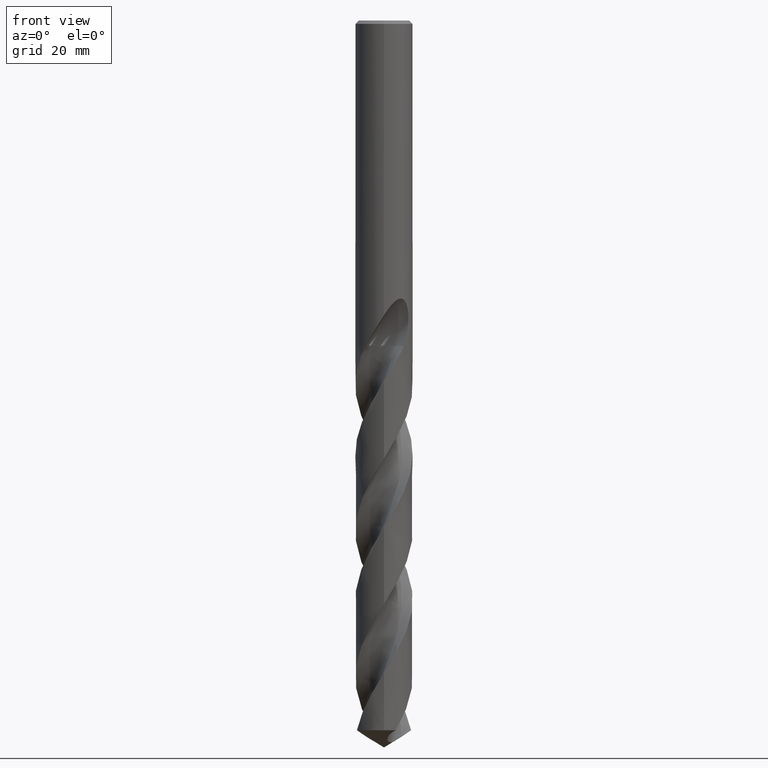
[diagram: clean part render]
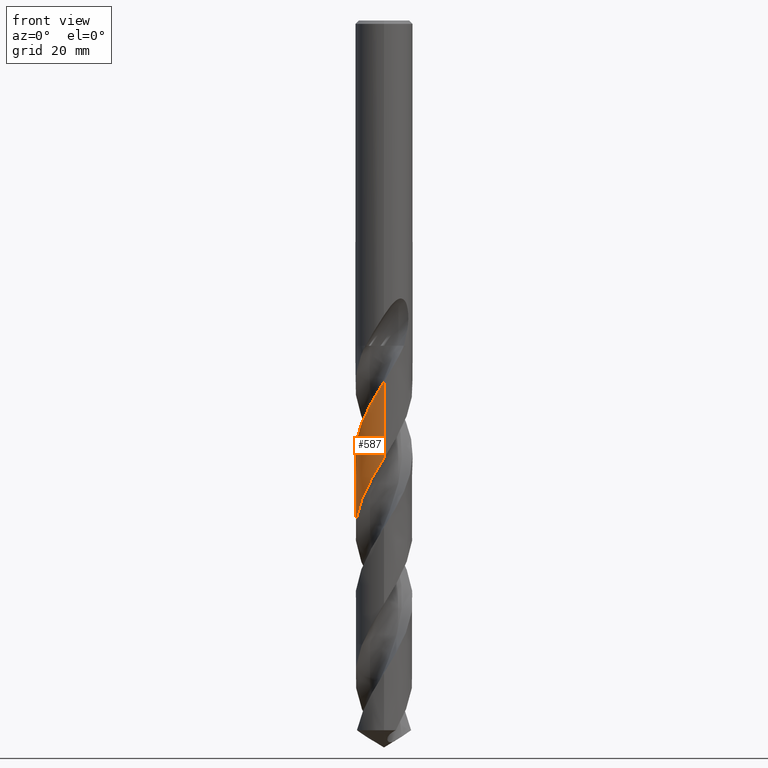
[diagram: same view with one face highlighted and labeled with its STEP entity id]
A machine part, front view. The second image highlights one B-rep face of the part: STEP entity #587.
In plain terms, the highlighted conical surface has half-angle 0 deg.
Its self-contained STEP definition (entity closure, byte-faithful):
#295=EDGE_CURVE('',#511,#621,#775,.T.);
#409=EDGE_CURVE('',#441,#461,#898,.T.);
#413=EDGE_CURVE('',#461,#511,#902,.T.);
#441=VERTEX_POINT('',#933);
#461=VERTEX_POINT('',#953);
#511=VERTEX_POINT('',#1008);
#521=EDGE_CURVE('',#621,#441,#1018,.T.);
#587=ADVANCED_FACE('',(#1090),#1091,.T.);
#621=VERTEX_POINT('',#1128);
#775=LINE('',#1458,#1459);
#898=LINE('',#3384,#3385);
#902=B_SPLINE_CURVE_WITH_KNOTS('',3,(#3392,#3393,#3394,#3395,#3396,#3397,#3398,#3399,#3400,#3401,#3402,#3403,#3404,#3405,#3406,#3407,#3408,#3409,#3410,#3411,#3412,#3413,#3414,#3415,#3416,#3417,#3418,#3419,#3420,#3421,#3422,#3423,#3424,#3425,#3426,#3427,#3428,#3429,#3430,#3431,#3432,#3433,#3434,#3435,#3436,#3437,#3438,#3439,#3440,#3441,#3442,#3443,#3444,#3445,#3446,#3447,#3448,#3449,#3450,#3451,#3452,#3453,#3454,#3455,#3456,#3457,#3458,#3459,#3460,#3461,#3462,#3463,#3464,#3465,#3466,#3467,#3468,#3469,#3470,#3471,#3472,#3473,#3474,#3475,#3476,#3477,#3478,#3479,#3480,#3481,#3482,#3483,#3484,#3485,#3486,#3487,#3488,#3489,#3490,#3491,#3492,#3493,#3494,#3495,#3496,#3497,#3498,#3499,#3500,#3501,#3502,#3503,#3504,#3505,#3506,#3507,#3508,#3509,#3510,#3511,#3512,#3513,#3514,#3515,#3516,#3517,#3518,#3519,#3520,#3521,#3522,#3523,#3524,#3525,#3526,#3527,#3528,#3529,#3530,#3531,#3532,#3533,#3534,#3535,#3536,#3537,#3538,#3539,#3540,#3541,#3542,#3543,#3544,#3545),.UNSPECIFIED.,.F.,.F.,(4,2,2,2,2,2,2,2,2,2,2,2,2,2,2,2,2,2,2,2,2,2,2,2,2,2,2,2,2,2,2,2,2,2,2,2,2,2,2,2,2,2,2,2,2,2,2,2,2,2,2,2,2,2,2,2,2,2,2,2,2,2,2,2,2,2,2,2,2,2,2,2,2,2,2,2,4),(0.0,1.50748654530633,1.88991541921366,3.14736590154603,4.02317505385611,4.890639101151,6.65005008762946,7.56356742630895,8.91027454732461,10.2587553400516,11.6060295305934,13.2356921212518,14.5908536598449,15.5086814113208,16.7820491478254,17.6037660767782,18.4047355146642,19.752970219888,21.5921097519633,23.1359168524317,23.4981230522202,26.0201597628206,26.0942580510454,27.9833165983218,29.815419869003,30.6251442429734,32.4580069678331,34.005111193509,34.3276354961778,35.6499590091773,36.5183415875236,37.3148668132709,39.0265927749595,39.9393251911185,41.2829997379073,41.9570181458602,42.625115509015,43.9683833518584,45.6141430177195,46.9353013227341,48.7636529713599,49.6833914254537,50.5991515907823,51.942874733445,52.6175546611899,53.2880055046408,54.6323272467589,55.3074742338575,55.9786010156297,57.3237740340832,57.9994288508914,58.6712561306512,60.017552403014,60.6937128313933,61.3660225758653,63.6996114430725,64.0324915364549,66.433686414719,66.7331578847922,69.1938673869093,69.4029594320629,70.7300280226471,71.5667703910027,72.2104032940249,73.5555665639491,75.7191204603716,78.1032908992503,79.1463426392215,79.8628348658946,80.5675068837216,80.9848327921977,81.2957494637103,81.5330128326611,81.7917512821478,82.1848684056281,82.6576979698151,84.0253922453913),.UNSPECIFIED.);
#933=CARTESIAN_POINT('',(-4.60620436701757E-014,5.24994720383186,-92.7057629186425));
#953=CARTESIAN_POINT('',(-2.05490071229355E-013,5.24996717770744,-106.756481925364));
#1008=CARTESIAN_POINT('',(1.63092672715157E-014,-5.24992927526557,-80.0938265980416));
#1018=B_SPLINE_CURVE_WITH_KNOTS('',3,(#4254,#4255,#4256,#4257,#4258,#4259,#4260,#4261,#4262,#4263,#4264,#4265,#4266,#4267,#4268,#4269,#4270,#4271,#4272,#4273,#4274,#4275,#4276,#4277,#4278,#4279,#4280,#4281,#4282,#4283,#4284,#4285,#4286,#4287,#4288,#4289,#4290,#4291,#4292,#4293,#4294,#4295,#4296,#4297,#4298,#4299,#4300,#4301,#4302,#4303,#4304,#4305,#4306,#4307,#4308,#4309,#4310,#4311,#4312,#4313,#4314,#4315,#4316,#4317,#4318,#4319,#4320,#4321,#4322,#4323,#4324,#4325,#4326,#4327,#4328,#4329,#4330,#4331,#4332,#4333,#4334,#4335,#4336,#4337,#4338,#4339,#4340,#4341,#4342,#4343,#4344,#4345,#4346,#4347,#4348,#4349,#4350,#4351,#4352,#4353,#4354,#4355,#4356,#4357,#4358,#4359,#4360,#4361,#4362,#4363,#4364,#4365,#4366,#4367,#4368,#4369,#4370,#4371,#4372,#4373,#4374,#4375,#4376,#4377,#4378,#4379,#4380,#4381,#4382,#4383,#4384,#4385,#4386,#4387,#4388,#4389,#4390,#4391,#4392,#4393,#4394,#4395,#4396,#4397,#4398,#4399,#4400,#4401),.UNSPECIFIED.,.F.,.F.,(4,2,2,2,2,2,2,2,2,2,2,2,2,2,2,2,2,2,2,2,2,2,2,2,2,2,2,2,2,2,2,2,2,2,2,2,2,2,2,2,2,2,2,2,2,2,2,2,2,2,2,2,2,2,2,2,2,2,2,2,2,2,2,2,2,2,2,2,2,2,2,2,2,4),(0.0,0.245147493079203,0.376889567052334,0.429010038940661,0.458770829505391,0.517518871356953,1.13684324226876,1.32619262551434,1.44567414334773,1.55045587004885,1.67996682737461,1.932374167695,2.11727051105744,2.71182734600191,3.17343692060679,3.59629394289918,3.81506963916397,4.36527247114798,4.8820826765656,5.84733672985134,13.0970902850045,13.4061839423757,15.8309908161917,15.9028916505654,18.0556838586716,18.9835969500726,20.738300763415,21.4677209346356,22.9192536542709,24.6943159270157,25.5869796835957,27.3570524056176,28.2502192990301,30.0167054160166,30.9102675384229,32.6745127898408,33.5687428660173,34.4528218713451,35.7526557245253,37.5416110272669,39.3068781583263,39.6122509773359,40.8411240207137,41.7367746755698,42.4378582038439,43.9148405444997,45.686452490242,46.5795027415076,48.3457716178562,49.2391954106456,51.0022885149418,51.8960864122938,52.7809614663465,54.1060062693658,55.8931178886489,57.6584197180022,57.9613961099816,59.2013425811078,60.9927625280722,62.7519294250753,63.416597085118,64.9406858268789,66.7057539197763,67.5994801329845,69.1707071902112,70.559933352916,71.162035469909,73.4216692918021,73.5285547590312,75.2213160585911,76.5000037869856,78.4157010204842,78.8959718556024,80.3378546333073),.UNSPECIFIED.);
#1090=FACE_OUTER_BOUND('',#4558,.T.);
#1091=CONICAL_SURFACE('',#4559,5.24995,1.42155540785034E-006);
#1128=CARTESIAN_POINT('',(2.09369078528751E-011,-5.24990930141659,-66.0431262937481));
#1458=CARTESIAN_POINT('',(6.44113971791003E-016,-5.24995,-94.6727408750527));
#1459=VECTOR('',#6880,1.0);
#3384=CARTESIAN_POINT('',(-6.41710453658954E-016,5.24995,-94.6727408750527));
#3385=VECTOR('',#6990,1.0);
#3392=CARTESIAN_POINT('',(2.14591596108831,-4.79140320657177,-129.845481750105));
#3393=CARTESIAN_POINT('',(2.38711165549686,-4.68337871819122,-129.41809774291));
#3394=CARTESIAN_POINT('',(2.61974958711492,-4.55732004162024,-128.992606265566));
#3395=CARTESIAN_POINT('',(2.89818147478174,-4.37807187758449,-128.456749306212));
#3396=CARTESIAN_POINT('',(2.95378856821589,-4.34074886943923,-128.348248240213));
#3397=CARTESIAN_POINT('',(3.18925562501905,-4.17608217153221,-127.88326942681));
#3398=CARTESIAN_POINT('',(3.36183211433741,-4.03847268026952,-127.527753864772));
#3399=CARTESIAN_POINT('',(3.63928388795904,-3.78704361771424,-126.923329047238));
#3400=CARTESIAN_POINT('',(3.74850871103309,-3.67895183954592,-126.675451706746));
#3401=CARTESIAN_POINT('',(3.95601291327231,-3.45478103019823,-126.181210352782));
#3402=CARTESIAN_POINT('',(4.05434813789913,-3.33883653503171,-125.934732193414));
#3403=CARTESIAN_POINT('',(4.33668240562404,-2.9750213303341,-125.189863413196));
#3404=CARTESIAN_POINT('',(4.50393774451582,-2.71516434243522,-124.69381104834));
#3405=CARTESIAN_POINT('',(4.72192296396359,-2.30032745259794,-123.936036558525));
#3406=CARTESIAN_POINT('',(4.78984802723543,-2.15531973807453,-123.676524395925));
#3407=CARTESIAN_POINT('',(4.94132742620814,-1.78924643044913,-123.035764198289));
#3408=CARTESIAN_POINT('',(5.01681290621335,-1.56518864197491,-122.655269723526));
#3409=CARTESIAN_POINT('',(5.1372148151178,-1.10787496356368,-121.891567807008));
#3410=CARTESIAN_POINT('',(5.18187075733279,-0.875437924459493,-121.508619839937));
#3411=CARTESIAN_POINT('',(5.23952555614861,-0.40673927262676,-120.744773346353));
#3412=CARTESIAN_POINT('',(5.25252694577051,-0.170702596479348,-120.364317660515));
#3413=CARTESIAN_POINT('',(5.24600839968086,0.351303411087204,-119.521222992398));
#3414=CARTESIAN_POINT('',(5.21912484231602,0.636126758764977,-119.058567856201));
#3415=CARTESIAN_POINT('',(5.12771224183708,1.15121980837383,-118.213151245846));
#3416=CARTESIAN_POINT('',(5.07038973779189,1.38198265047267,-117.830593966802));
#3417=CARTESIAN_POINT('',(4.94837150367918,1.76119428492292,-117.186831719748));
#3418=CARTESIAN_POINT('',(4.89213204176114,1.91183964606968,-116.926367782201));
#3419=CARTESIAN_POINT('',(4.74175884726259,2.26442960666146,-116.305996414547));
#3420=CARTESIAN_POINT('',(4.64134964352078,2.46372849875392,-115.946593724654));
#3421=CARTESIAN_POINT('',(4.45559779970407,2.7804076339583,-115.35387752277));
#3422=CARTESIAN_POINT('',(4.37772709080196,2.901456333945,-115.12162923385));
#3423=CARTESIAN_POINT('',(4.21448754195602,3.13368807803211,-114.662256316591));
#3424=CARTESIAN_POINT('',(4.12934986990706,3.24505860483974,-114.435008870804));
#3425=CARTESIAN_POINT('',(3.88903002160532,3.53460409456829,-113.826398545209));
#3426=CARTESIAN_POINT('',(3.72612645276699,3.70595022499676,-113.445899982755));
#3427=CARTESIAN_POINT('',(3.31479933952199,4.08389955770051,-112.543726941486));
#3428=CARTESIAN_POINT('',(3.05796288623853,4.2796017421395,-112.022041543937));
#3429=CARTESIAN_POINT('',(2.55534822032923,4.594085470839,-111.064521787431));
#3430=CARTESIAN_POINT('',(2.31543984538363,4.71952106731599,-110.629328647391));
#3431=CARTESIAN_POINT('',(2.00896379365017,4.85080240418272,-110.089485885558));
#3432=CARTESIAN_POINT('',(1.95032879340127,4.87467261950057,-109.986837907439));
#3433=CARTESIAN_POINT('',(1.47981588783992,5.05636718957596,-109.170028888773));
#3434=CARTESIAN_POINT('',(1.05028295519887,5.16267345814387,-108.463890719085));
#3435=CARTESIAN_POINT('',(0.599857788837654,5.21560236874202,-107.728696903629));
#3436=CARTESIAN_POINT('',(0.586981934789312,5.21706722945025,-107.707690264848));
#3437=CARTESIAN_POINT('',(0.244926260567437,5.25469502111798,-107.150013142144));
#3438=CARTESIAN_POINT('',(-0.0872160593944918,5.2597204795028,-106.616908737675));
#3439=CARTESIAN_POINT('',(-0.738801262446197,5.20767542837262,-105.560980710091));
#3440=CARTESIAN_POINT('',(-1.05653764635428,5.1526206318765,-105.040075139007));
#3441=CARTESIAN_POINT('',(-1.50473301665353,5.03171358959564,-104.290513885479));
#3442=CARTESIAN_POINT('',(-1.64052589385382,4.98909052606969,-104.061035769854));
#3443=CARTESIAN_POINT('',(-2.07744006163562,4.83218603738524,-103.311197726714));
#3444=CARTESIAN_POINT('',(-2.36974489294566,4.69575364833081,-102.789996698279));
#3445=CARTESIAN_POINT('',(-2.8825207364552,4.39625286196081,-101.83098282217));
#3446=CARTESIAN_POINT('',(-3.10597634659642,4.24129000669532,-101.393797292457));
#3447=CARTESIAN_POINT('',(-3.36005952079722,4.03426127948213,-100.862896866698));
#3448=CARTESIAN_POINT('',(-3.40328722054568,3.9978624600118,-100.771267090314));
#3449=CARTESIAN_POINT('',(-3.62100791560212,3.80843620304395,-100.303919576216));
#3450=CARTESIAN_POINT('',(-3.78593331662794,3.6445609110546,-99.9294713977666));
#3451=CARTESIAN_POINT('',(-4.04054282363726,3.35549891866196,-99.3076168794444));
#3452=CARTESIAN_POINT('',(-4.13633862144243,3.23666206654945,-99.0613941018049));
#3453=CARTESIAN_POINT('',(-4.30969135388437,3.00135722568956,-98.5884961075261));
#3454=CARTESIAN_POINT('',(-4.38810006294604,2.88551357577772,-98.3617750548075));
#3455=CARTESIAN_POINT('',(-4.62030578404535,2.51101986287848,-97.6491489275797));
#3456=CARTESIAN_POINT('',(-4.75651793918717,2.24231699349216,-97.1654226135684));
#3457=CARTESIAN_POINT('',(-4.92895491704004,1.8146950105313,-96.4199126896965));
#3458=CARTESIAN_POINT('',(-4.98203138644177,1.66344007159018,-96.160090119451));
#3459=CARTESIAN_POINT('',(-5.09595690068099,1.28407492966457,-95.5192178247812));
#3460=CARTESIAN_POINT('',(-5.1485397553219,1.05371055633017,-95.1388845061564));
#3461=CARTESIAN_POINT('',(-5.20396378751023,0.703399892382055,-94.5661599866238));
#3462=CARTESIAN_POINT('',(-5.21849665682109,0.585879240707576,-94.3749469797624));
#3463=CARTESIAN_POINT('',(-5.23949511364891,0.351286731301074,-93.9937479099949));
#3464=CARTESIAN_POINT('',(-5.24603460945426,0.234197687594229,-93.8036351291286));
#3465=CARTESIAN_POINT('',(-5.25389896086408,-0.118938215995534,-93.2321794336889));
#3466=CARTESIAN_POINT('',(-5.24325395625375,-0.355007532160789,-92.8518396896114));
#3467=CARTESIAN_POINT('',(-5.18421155889043,-0.877290437424838,-92.0031300094704));
#3468=CARTESIAN_POINT('',(-5.12800824093174,-1.16150149908918,-91.5347616157787));
#3469=CARTESIAN_POINT('',(-4.98505297500799,-1.6628450695485,-90.6922039583505));
#3470=CARTESIAN_POINT('',(-4.90665741549746,-1.88162806461531,-90.318214285471));
#3471=CARTESIAN_POINT('',(-4.68584741191501,-2.3891339743818,-89.4239002820516));
#3472=CARTESIAN_POINT('',(-4.53088492157302,-2.67138960571729,-88.9037174885373));
#3473=CARTESIAN_POINT('',(-4.2604872323726,-3.07185271675963,-88.1235112300069));
#3474=CARTESIAN_POINT('',(-4.16387159245129,-3.2015884291444,-87.862767337613));
#3475=CARTESIAN_POINT('',(-3.95949024149807,-3.45111559750866,-87.341542742382));
#3476=CARTESIAN_POINT('',(-3.8519366786392,-3.57074751014045,-87.0809892806851));
#3477=CARTESIAN_POINT('',(-3.57379117030487,-3.85297301919349,-86.4396293312936));
#3478=CARTESIAN_POINT('',(-3.39712904154425,-4.00962427764943,-86.0595184377861));
#3479=CARTESIAN_POINT('',(-3.11656091748733,-4.22645650660801,-85.4870309212236));
#3480=CARTESIAN_POINT('',(-3.02041329409418,-4.29568955745054,-85.2957851857993));
#3481=CARTESIAN_POINT('',(-2.82435807259598,-4.42703805403827,-84.9140612113042));
#3482=CARTESIAN_POINT('',(-2.72456103250046,-4.48914212657158,-84.7234964286969));
#3483=CARTESIAN_POINT('',(-2.4187149754318,-4.66552582896239,-84.1519417561047));
#3484=CARTESIAN_POINT('',(-2.20677781365445,-4.76944905180852,-83.7718924847259));
#3485=CARTESIAN_POINT('',(-1.87865135353566,-4.90372530977238,-83.1994694878232));
#3486=CARTESIAN_POINT('',(-1.76753495144146,-4.94485929313936,-83.0082159682247));
#3487=CARTESIAN_POINT('',(-1.54353066878809,-5.01927825801995,-82.6264214030249));
#3488=CARTESIAN_POINT('',(-1.43075307310876,-5.05257846812203,-82.4357918027737));
#3489=CARTESIAN_POINT('',(-1.08896867847302,-5.1411493210836,-81.8642076945192));
#3490=CARTESIAN_POINT('',(-0.857024111276772,-5.18488043614357,-81.4841865262218));
#3491=CARTESIAN_POINT('',(-0.504984201591965,-5.22693143476293,-80.9117972211551));
#3492=CARTESIAN_POINT('',(-0.386912770024492,-5.23699163804845,-80.7205411074219));
#3493=CARTESIAN_POINT('',(-0.1511130908229,-5.24907455571916,-80.3386898392957));
#3494=CARTESIAN_POINT('',(-0.0334882534423847,-5.251138542486,-80.1480059214753));
#3495=CARTESIAN_POINT('',(0.319594653760469,-5.24548410586864,-79.5763553457439));
#3496=CARTESIAN_POINT('',(0.554822830997582,-5.22586038883183,-79.1963160202173));
#3497=CARTESIAN_POINT('',(0.9053490482126,-5.17263267194928,-78.6239055029646));
#3498=CARTESIAN_POINT('',(1.02182728828842,-5.15088491110091,-78.4326523744845));
#3499=CARTESIAN_POINT('',(1.25230541535622,-5.099736528626,-78.0508098416327));
#3500=CARTESIAN_POINT('',(1.36621480357808,-5.07040347723332,-77.8601275103175));
#3501=CARTESIAN_POINT('',(1.87035335029269,-4.92238496326313,-77.0093919582387));
#3502=CARTESIAN_POINT('',(2.24686963382172,-4.7623000457558,-76.3553631563454));
#3503=CARTESIAN_POINT('',(2.6515373967362,-4.53149226172095,-75.6008285193172));
#3504=CARTESIAN_POINT('',(2.70154408509041,-4.50185914799211,-75.5065846747599));
#3505=CARTESIAN_POINT('',(3.10867678130097,-4.25135953316121,-74.7325325456015));
#3506=CARTESIAN_POINT('',(3.43841879209491,-3.98936066821692,-74.0597456915745));
#3507=CARTESIAN_POINT('',(3.77020253447436,-3.65376069499628,-73.2952910759103));
#3508=CARTESIAN_POINT('',(3.80641737782547,-3.61601784145899,-73.2104839708896));
#3509=CARTESIAN_POINT('',(4.13541531614148,-3.26270185561014,-72.4286529848231));
#3510=CARTESIAN_POINT('',(4.38873186300014,-2.913010917857,-71.7391071896057));
#3511=CARTESIAN_POINT('',(4.61417641599677,-2.50446260185295,-70.9829688465441));
#3512=CARTESIAN_POINT('',(4.63149572078776,-2.47228805291812,-70.9237307401832));
#3513=CARTESIAN_POINT('',(4.75649685680203,-2.23413115037283,-70.4880635345621));
#3514=CARTESIAN_POINT('',(4.85082783551386,-2.02121843477684,-70.113009489292));
#3515=CARTESIAN_POINT('',(4.98121151856133,-1.6645410525644,-69.4999600857702));
#3516=CARTESIAN_POINT('',(5.02578214878044,-1.5246665271265,-69.2631481866068));
#3517=CARTESIAN_POINT('',(5.09412933258725,-1.27442387721975,-68.8434811076308));
#3518=CARTESIAN_POINT('',(5.12030111733096,-1.16481029831352,-68.6607343263427));
#3519=CARTESIAN_POINT('',(5.19018843572285,-0.823957902393731,-68.0972293202115));
#3520=CARTESIAN_POINT('',(5.22195943661933,-0.590228056503568,-67.7173049384629));
#3521=CARTESIAN_POINT('',(5.2635515939982,0.0237295957854351,-66.7241765223596));
#3522=CARTESIAN_POINT('',(5.24802889340719,0.403705868858457,-66.113201461489));
#3523=CARTESIAN_POINT('',(5.13013673535807,1.19044718941563,-64.8257199619041));
#3524=CARTESIAN_POINT('',(5.01947616032413,1.59421356169662,-64.1444911365013));
#3525=CARTESIAN_POINT('',(4.79238779986092,2.15128921679505,-63.1833525615464));
#3526=CARTESIAN_POINT('',(4.71766691630529,2.31014352661588,-62.9101995559146));
#3527=CARTESIAN_POINT('',(4.57664598178693,2.57502164707593,-62.4315436752408));
#3528=CARTESIAN_POINT('',(4.51630964253586,2.67927171763646,-62.2364167717242));
#3529=CARTESIAN_POINT('',(4.39177777232901,2.87877957572764,-61.845444308698));
#3530=CARTESIAN_POINT('',(4.3260202611222,2.97659869139626,-61.6450763383095));
#3531=CARTESIAN_POINT('',(4.21943277788241,3.12449387377956,-61.3190132751952));
#3532=CARTESIAN_POINT('',(4.19488050848576,3.15698926150178,-61.2421212033826));
#3533=CARTESIAN_POINT('',(4.14591581710635,3.22087516831876,-61.0963990885022));
#3534=CARTESIAN_POINT('',(4.12434510731926,3.24846577436575,-61.0346345380748));
#3535=CARTESIAN_POINT('',(4.08498516809104,3.29774356121037,-60.9263608926099));
#3536=CARTESIAN_POINT('',(4.06753233405535,3.31925334677687,-60.8797641120368));
#3537=CARTESIAN_POINT('',(4.03010500737935,3.36461944486443,-60.7828392139659));
#3538=CARTESIAN_POINT('',(4.01006598119181,3.38848680970588,-60.7326088253259));
#3539=CARTESIAN_POINT('',(3.95818519613676,3.44913805313146,-60.6067971332127));
#3540=CARTESIAN_POINT('',(3.92729838760192,3.48428061917483,-60.5356399830315));
#3541=CARTESIAN_POINT('',(3.85464819459123,3.56463872746989,-60.3765016493796));
#3542=CARTESIAN_POINT('',(3.81314478665943,3.60905675205826,-60.2908641613685));
#3543=CARTESIAN_POINT('',(3.64391085281246,3.78365147319639,-59.9617974870712));
#3544=CARTESIAN_POINT('',(3.50320005887938,3.91548167106477,-59.7295031988002));
#3545=CARTESIAN_POINT('',(3.34534377703037,4.0460011243343,-59.505));
#4254=CARTESIAN_POINT('',(3.64908533301686,-3.77433786471103,-59.505));
#4255=CARTESIAN_POINT('',(3.61970066609569,-3.80274753257891,-59.5757595164052));
#4256=CARTESIAN_POINT('',(3.58989777984126,-3.83089883720235,-59.6465355898578));
#4257=CARTESIAN_POINT('',(3.54330824543369,-3.87387549989193,-59.7552437854508));
#4258=CARTESIAN_POINT('',(3.52689310455275,-3.88882709398588,-59.7931902285004));
#4259=CARTESIAN_POINT('',(3.50376360746395,-3.90962575068872,-59.8461229704857));
#4260=CARTESIAN_POINT('',(3.49718456379707,-3.91551193098533,-59.8611199778194));
#4261=CARTESIAN_POINT('',(3.48681066064202,-3.92474618926558,-59.8846720128631));
#4262=CARTESIAN_POINT('',(3.48303257700961,-3.9280994777187,-59.8932297312672));
#4263=CARTESIAN_POINT('',(3.47177296793953,-3.93806403174063,-59.9186745112178));
#4264=CARTESIAN_POINT('',(3.46427015290268,-3.9446658977499,-59.9355520330065));
#4265=CARTESIAN_POINT('',(3.37730276135589,-4.02074919249541,-60.1302730468318));
#4266=CARTESIAN_POINT('',(3.29596074856169,-4.08778224943975,-60.3035454888723));
#4267=CARTESIAN_POINT('',(3.18344035813022,-4.17471932124399,-60.5322815427228));
#4268=CARTESIAN_POINT('',(3.15682047285328,-4.19488698692267,-60.5856645678309));
#4269=CARTESIAN_POINT('',(3.11287813518448,-4.22751766650705,-60.6727248190507));
#4270=CARTESIAN_POINT('',(3.09570755711161,-4.24010848059036,-60.7064940444586));
#4271=CARTESIAN_POINT('',(3.06319791227641,-4.26364153384535,-60.7700057921879));
#4272=CARTESIAN_POINT('',(3.0479333290443,-4.27456724179083,-60.7996540977326));
#4273=CARTESIAN_POINT('',(3.01362724857477,-4.29884413610177,-60.865940115385));
#4274=CARTESIAN_POINT('',(2.99455952106768,-4.31214862960217,-60.9025470829063));
#4275=CARTESIAN_POINT('',(2.9380182907892,-4.35104334468119,-61.0105127859811));
#4276=CARTESIAN_POINT('',(2.90034281585106,-4.37624707847561,-61.0817042177918));
#4277=CARTESIAN_POINT('',(2.83453088327332,-4.41905102405828,-61.2052985020666));
#4278=CARTESIAN_POINT('',(2.80624502432045,-4.4370726676884,-61.2581870831461));
#4279=CARTESIAN_POINT('',(2.68499852145174,-4.51266449346126,-61.4848464871134));
#4280=CARTESIAN_POINT('',(2.59124455781251,-4.56711066816769,-61.6593289843428));
#4281=CARTESIAN_POINT('',(2.42318774140381,-4.6579630554069,-61.9683997754632));
#4282=CARTESIAN_POINT('',(2.34890863709964,-4.69585414818315,-62.1037954884888));
#4283=CARTESIAN_POINT('',(2.20515154222251,-4.76493587978299,-62.3630075804287));
#4284=CARTESIAN_POINT('',(2.13568190636986,-4.79647587293711,-62.4870459065991));
#4285=CARTESIAN_POINT('',(2.02922787233695,-4.84203370871097,-62.6750678308645));
#4286=CARTESIAN_POINT('',(1.9927317151877,-4.85716808878693,-62.7391711619492));
#4287=CARTESIAN_POINT('',(1.86376869911075,-4.90894639723486,-62.9643934162377));
#4288=CARTESIAN_POINT('',(1.77046052245211,-4.94336866347027,-63.1249706073824));
#4289=CARTESIAN_POINT('',(1.58741441208681,-5.0050351401481,-63.4368278958421));
#4290=CARTESIAN_POINT('',(1.4979570810038,-5.0325335925621,-63.5877582078655));
#4291=CARTESIAN_POINT('',(1.23940243851381,-5.10450318376894,-64.0208648038418));
#4292=CARTESIAN_POINT('',(1.06890301967328,-5.14290082939446,-64.3029233641127));
#4293=CARTESIAN_POINT('',(-0.394637945844607,-5.39667920253419,-66.7047552860633));
#4294=CARTESIAN_POINT('',(-1.72476773478955,-5.12901366282802,-68.754525531863));
#4295=CARTESIAN_POINT('',(-2.87658335974605,-4.39204005604108,-70.9639945671842));
#4296=CARTESIAN_POINT('',(-2.92319185478039,-4.36115780111627,-71.0543210730171));
#4297=CARTESIAN_POINT('',(-3.33098815214505,-4.08148305450207,-71.8535622007936));
#4298=CARTESIAN_POINT('',(-3.66022583812792,-3.78903757005582,-72.5602541895539));
#4299=CARTESIAN_POINT('',(-3.95781420229887,-3.4492798905859,-73.2901689269797));
#4300=CARTESIAN_POINT('',(-3.96634727816764,-3.43946428895241,-73.311188251627));
#4301=CARTESIAN_POINT('',(-4.22924744883208,-3.13477067410862,-73.9616274812905));
#4302=CARTESIAN_POINT('',(-4.45009176887506,-2.81248355490137,-74.5898737244348));
#4303=CARTESIAN_POINT('',(-4.71219536471309,-2.32057925434501,-75.490634026391));
#4304=CARTESIAN_POINT('',(-4.78397234760307,-2.16874722986856,-75.7617035066297));
#4305=CARTESIAN_POINT('',(-4.97007428346084,-1.72069077846973,-76.5462120203725));
#4306=CARTESIAN_POINT('',(-5.06500793989197,-1.41711218920304,-77.0584483790621));
#4307=CARTESIAN_POINT('',(-5.15976336337317,-0.977744047804286,-77.784801401143));
#4308=CARTESIAN_POINT('',(-5.1827062208727,-0.847755148463114,-77.9979396133019));
#4309=CARTESIAN_POINT('',(-5.23658676791079,-0.456973379210611,-78.6357642209865));
#4310=CARTESIAN_POINT('',(-5.25289085218026,-0.194529977201798,-79.0598957002219));
#4311=CARTESIAN_POINT('',(-5.24532512649125,0.38916622958392,-80.0034692765793));
#4312=CARTESIAN_POINT('',(-5.21170828137282,0.709174636842171,-80.5212996626878));
#4313=CARTESIAN_POINT('',(-5.1175946713722,1.18239845691739,-81.3015317572829));
#4314=CARTESIAN_POINT('',(-5.07880959483769,1.33923733692335,-81.56247123728));
#4315=CARTESIAN_POINT('',(-4.94170820870425,1.80107535392853,-82.3411405380164));
#4316=CARTESIAN_POINT('',(-4.82268196905092,2.09905449432653,-82.8575672625409));
#4317=CARTESIAN_POINT('',(-4.6039227108178,2.52820133994721,-83.6364885001007));
#4318=CARTESIAN_POINT('',(-4.52394115996181,2.66868601937933,-83.8975714288788));
#4319=CARTESIAN_POINT('',(-4.26681027395599,3.07543583903848,-84.675339243977));
#4320=CARTESIAN_POINT('',(-4.07174388380701,3.32938606289292,-85.1907721647121));
#4321=CARTESIAN_POINT('',(-3.74513957434471,3.6826476221191,-85.9687678442249));
#4322=CARTESIAN_POINT('',(-3.62998593404298,3.79620719291121,-86.2299655506487));
#4323=CARTESIAN_POINT('',(-3.27236614762417,4.11769017049428,-87.007197553394));
#4324=CARTESIAN_POINT('',(-3.01604464545427,4.30896395935349,-87.5220239740196));
#4325=CARTESIAN_POINT('',(-2.60610771641991,4.56028978350671,-88.2995513407386));
#4326=CARTESIAN_POINT('',(-2.46435938469445,4.63842605344779,-88.5609350685145));
#4327=CARTESIAN_POINT('',(-2.17569251305194,4.78056924278581,-89.0809660208377));
#4328=CARTESIAN_POINT('',(-2.02904668866794,4.84463033758245,-89.3392236602222));
#4329=CARTESIAN_POINT('',(-1.660164266581,4.98608580392714,-89.977928849915));
#4330=CARTESIAN_POINT('',(-1.4351946659036,5.05543494213925,-90.3578827700928));
#4331=CARTESIAN_POINT('',(-0.891360570250054,5.18383455566174,-91.2612496200763));
#4332=CARTESIAN_POINT('',(-0.570217606221704,5.22890805111489,-91.7829230294345));
#4333=CARTESIAN_POINT('',(0.0719201004691721,5.25915547173351,-92.8225028700012));
#4334=CARTESIAN_POINT('',(0.391639588343294,5.24505681487173,-93.3377246578306));
#4335=CARTESIAN_POINT('',(0.762925056824371,5.19451280514353,-93.9432470846751));
#4336=CARTESIAN_POINT('',(0.817552506232225,5.18619571893099,-94.0325303903652));
#4337=CARTESIAN_POINT('',(1.09128770128664,5.14008739668291,-94.4812556758811));
#4338=CARTESIAN_POINT('',(1.30796081252809,5.0892674070561,-94.8405298118404));
#4339=CARTESIAN_POINT('',(1.67583999336383,4.9779315872043,-95.4619384114119));
#4340=CARTESIAN_POINT('',(1.8286985817817,4.92383239171682,-95.7237296201944));
#4341=CARTESIAN_POINT('',(2.0963543563047,4.81491372879177,-96.1907021162617));
#4342=CARTESIAN_POINT('',(2.212077032111,4.76285653848194,-96.3956163971144));
#4343=CARTESIAN_POINT('',(2.56533383370573,4.58829688158376,-97.0327243861406));
#4344=CARTESIAN_POINT('',(2.79553187289867,4.45179190676613,-97.4643498115023));
#4345=CARTESIAN_POINT('',(3.27683081141509,4.11426605359299,-98.4145369009092));
#4346=CARTESIAN_POINT('',(3.52185742657813,3.90656758204381,-98.9315075876514));
#4347=CARTESIAN_POINT('',(3.85955230602324,3.56258414276098,-99.7109940983979));
#4348=CARTESIAN_POINT('',(3.96736776510448,3.44211641725245,-99.9720923760999));
#4349=CARTESIAN_POINT('',(4.27141259038306,3.06908232596614,-100.749909761178));
#4350=CARTESIAN_POINT('',(4.45027196626585,2.80343498731869,-101.265371826566));
#4351=CARTESIAN_POINT('',(4.68152126560272,2.38150490201766,-102.043407717876));
#4352=CARTESIAN_POINT('',(4.75262823757438,2.23623667066698,-102.304613065691));
#4353=CARTESIAN_POINT('',(4.94381941380006,1.79514658055339,-103.081613587554));
#4354=CARTESIAN_POINT('',(5.04373772848787,1.49149113269601,-103.596199661439));
#4355=CARTESIAN_POINT('',(5.15183413502257,1.02316597279607,-104.37342268091));
#4356=CARTESIAN_POINT('',(5.18090749723659,0.863993241023549,-104.634736218278));
#4357=CARTESIAN_POINT('',(5.22405362064661,0.54501245906236,-105.154979560239));
#4358=CARTESIAN_POINT('',(5.23824448867163,0.385440585390933,-105.413523590096));
#4359=CARTESIAN_POINT('',(5.25541893439155,-0.0140491056605581,-106.059955556352));
#4360=CARTESIAN_POINT('',(5.24929663035818,-0.254015353685866,-106.447329559358));
#4361=CARTESIAN_POINT('',(5.19644522016721,-0.814674581844251,-107.357688632017));
#4362=CARTESIAN_POINT('',(5.13641885711426,-1.13309028639617,-107.878928826343));
#4363=CARTESIAN_POINT('',(4.95967099418408,-1.75095284556399,-108.918178664955));
#4364=CARTESIAN_POINT('',(4.84398487692763,-2.04941323399439,-109.433501927179));
#4365=CARTESIAN_POINT('',(4.67744721394484,-2.38468007971056,-110.038451274808));
#4366=CARTESIAN_POINT('',(4.65228726685325,-2.4333998430696,-110.127053699086));
#4367=CARTESIAN_POINT('',(4.52030429301446,-2.67944169762517,-110.578406723878));
#4368=CARTESIAN_POINT('',(4.40167521501985,-2.87015915022558,-110.94098179603));
#4369=CARTESIAN_POINT('',(4.08272777738431,-3.316419982623,-111.827803333685));
#4370=CARTESIAN_POINT('',(3.87023736181957,-3.56209917344172,-112.350264255846));
#4371=CARTESIAN_POINT('',(3.40690810310686,-4.00706025074925,-113.389041527393));
#4372=CARTESIAN_POINT('',(3.15771660074242,-4.2062438545646,-113.902706256069));
#4373=CARTESIAN_POINT('',(2.79153745088082,-4.44792835814767,-114.611709281623));
#4374=CARTESIAN_POINT('',(2.68889763619323,-4.51071714208677,-114.806042722373));
#4375=CARTESIAN_POINT('',(2.34415976168789,-4.70566156970972,-115.446409140424));
#4376=CARTESIAN_POINT('',(2.09374570035463,-4.82230426021377,-115.891834707987));
#4377=CARTESIAN_POINT('',(1.53597477886806,-5.03042263650286,-116.854064329237));
#4378=CARTESIAN_POINT('',(1.22712964680624,-5.11453482048641,-117.369310069274));
#4379=CARTESIAN_POINT('',(0.753367976350771,-5.19816437896999,-118.147229025784));
#4380=CARTESIAN_POINT('',(0.592875183889507,-5.2189077731064,-118.408567302312));
#4381=CARTESIAN_POINT('',(0.14820973724266,-5.25559320248844,-119.129670163634));
#4382=CARTESIAN_POINT('',(-0.136608558989312,-5.25590201162618,-119.588477036593));
#4383=CARTESIAN_POINT('',(-0.67054207627365,-5.21305236416322,-120.454677789188));
#4384=CARTESIAN_POINT('',(-0.919389655330092,-5.17497169309002,-120.860590791579));
#4385=CARTESIAN_POINT('',(-1.27088581835282,-5.09500771814748,-121.443123972364));
#4386=CARTESIAN_POINT('',(-1.37636608367893,-5.06753060569841,-121.61916806071));
#4387=CARTESIAN_POINT('',(-1.87322449521699,-4.92144697658451,-122.45646859345));
#4388=CARTESIAN_POINT('',(-2.25081776968275,-4.76062650899464,-123.115682648559));
#4389=CARTESIAN_POINT('',(-2.62274243536511,-4.54796728609912,-123.808023802516));
#4390=CARTESIAN_POINT('',(-2.63948626936239,-4.53827026451992,-123.839291291048));
#4391=CARTESIAN_POINT('',(-2.92050611649228,-4.37343915984629,-124.365836163309));
#4392=CARTESIAN_POINT('',(-3.17076386531223,-4.19554391162081,-124.860693801191));
#4393=CARTESIAN_POINT('',(-3.5802889654952,-3.8467588072819,-125.730161776486));
#4394=CARTESIAN_POINT('',(-3.74637229642134,-3.68519978799935,-126.103599299539));
#4395=CARTESIAN_POINT('',(-4.13326124039041,-3.25558344608027,-127.038409009007));
#4396=CARTESIAN_POINT('',(-4.33923349199676,-2.97553596364471,-127.597950150918));
#4397=CARTESIAN_POINT('',(-4.56044059645499,-2.60238722426953,-128.299049126873));
#4398=CARTESIAN_POINT('',(-4.60291322332225,-2.5265050930883,-128.439535617546));
#4399=CARTESIAN_POINT('',(-4.76527220327456,-2.21873868682029,-129.002023504017));
#4400=CARTESIAN_POINT('',(-4.86969798547308,-1.97906846790117,-129.42357491473));
#4401=CARTESIAN_POINT('',(-4.95586829521978,-1.73259038449234,-129.845481750105));
#4558=EDGE_LOOP('',(#7173,#7174,#7175,#7176));
#4559=AXIS2_PLACEMENT_3D('',#7177,#7178,#7179);
#6880=DIRECTION('',(-1.7408457847635E-022,1.42155540784986E-006,0.99999999999899));
#6990=DIRECTION('',(-1.7408457847635E-022,1.42155540784986E-006,-0.99999999999899));
#7173=ORIENTED_EDGE('',*,*,#409,.T.);
#7174=ORIENTED_EDGE('',*,*,#413,.T.);
#7175=ORIENTED_EDGE('',*,*,#295,.T.);
#7176=ORIENTED_EDGE('',*,*,#521,.T.);
#7177=CARTESIAN_POINT('',(0.0,0.0,-94.6727408750527));
#7178=DIRECTION('',(0.0,-0.0,-1.0));
#7179=DIRECTION('',(0.0,1.0,0.0));